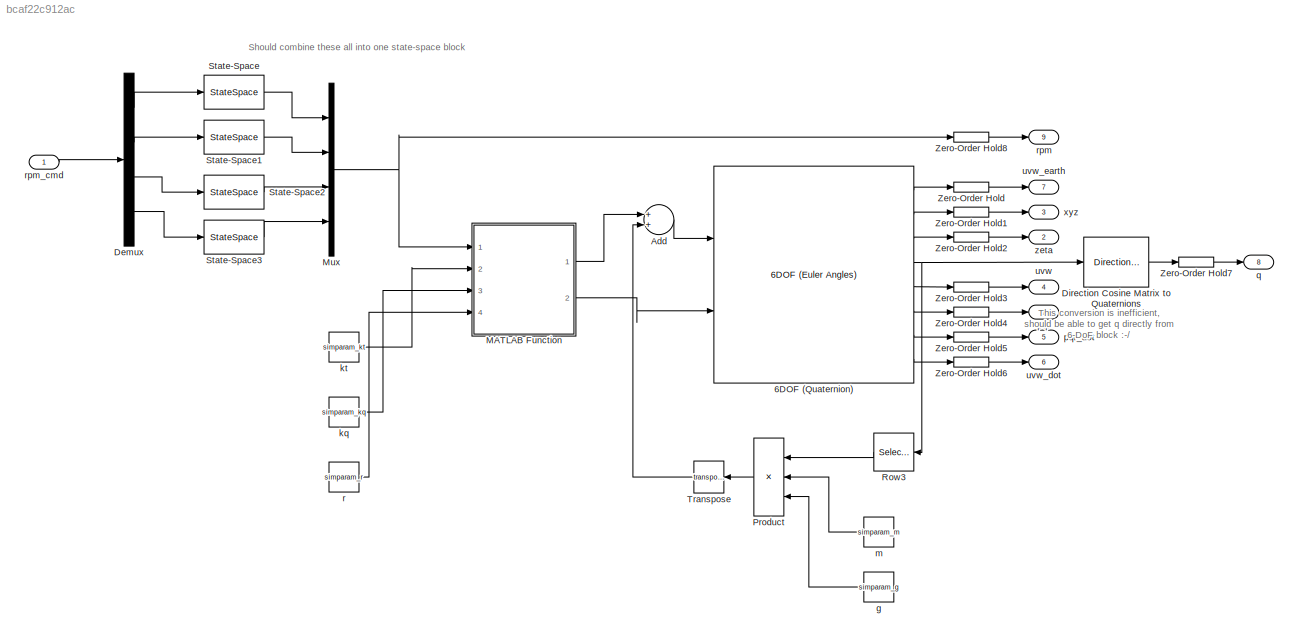
MODEL slx_bcaf22c912ac
KIND model
CONFIG AbsTol = auto
CONFIG EnableMultiTasking = off
CONFIG FixedStep = simparam_delta_t
CONFIG MaxStep = auto
CONFIG MinStep = auto
CONFIG RelTol = 1e-3
CONFIG SampleTimeConstraint = Unconstrained
CONFIG Solver = ode4
CONFIG SolverName = ode4
CONFIG StartTime = 0.0
CONFIG StopTime = inf
WORKSPACE source: MAT-file member
WORKSPACE MCOS: class17 (value not decoded)
WORKSPACE MCOS: class17 (value not decoded)
WORKSPACE MCOS: class17 (value not decoded)
BLOCK [Reference] 6DOF (Quaternion)  REF=shared6dof/6DOF (Euler Angles)
  Ports = [2, 8]
  SourceBlock = shared6dof/6DOF (Euler Angles)
  SourceProductBaseCode = AE
  SourceProductName = Aerospace Blockset
  SourceType = 6DOF EoM (Body Axis)
BLOCK [Sum] Add
  InputSameDT = off
  OutDataTypeStr = Inherit: Inherit via internal rule
  Ports = [2, 1]
  SaturateOnIntegerOverflow = off
BLOCK [Demux] Demux
  DisplayOption = bar
  Ports = [1, 4]
BLOCK [Reference] Direction Cosine Matrix to Quaternions  REF=sharedtransform/Direction Cosine Matrix 
to Quaternions
  Ports = [1, 1]
  SourceBlock = sharedtransform/Direction Cosine Matrix \nto Quaternions
  SourceProductBaseCode = AE
  SourceProductName = Aerospace Blockset
  SourceType = DCM2Quaternion
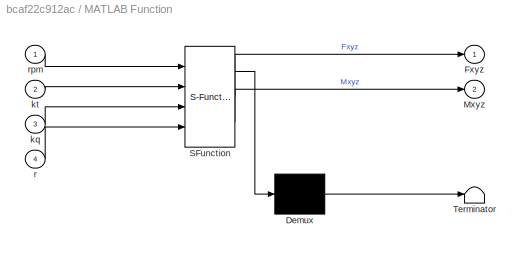
BLOCK [SubSystem] MATLAB Function
  ErrorFcn = Stateflow.Translate.translate
  PermitHierarchicalResolution = ExplicitOnly
  Ports = [4, 2]
  RequestExecContextInheritance = off
  SFBlockType = MATLAB Function
  TreatAsAtomicUnit = on
BLOCK [Demux] MATLAB Function/ Demux 
  Outputs = 1
  Ports = [1, 1]
BLOCK [S-Function] MATLAB Function/ SFunction 
  EnableBusSupport = on
  FunctionName = sf_sfun
  PortCounts = [4 3]
  Ports = [4, 3]
  SFcnIsStateOwnerBlock = off
  SFunctionDeploymentMode = off
  Tag = Stateflow S-Function quadrotor 2
BLOCK [Terminator] MATLAB Function/ Terminator 
BLOCK [Outport] MATLAB Function/Fxyz
  IconDisplay = Port number
BLOCK [Outport] MATLAB Function/Mxyz
  IconDisplay = Port number
  Port = 2
BLOCK [Inport] MATLAB Function/kq
  IconDisplay = Port number
  Port = 3
BLOCK [Inport] MATLAB Function/kt
  IconDisplay = Port number
  Port = 2
BLOCK [Inport] MATLAB Function/r
  IconDisplay = Port number
  Port = 4
BLOCK [Inport] MATLAB Function/rpm
  IconDisplay = Port number
BLOCK [Mux] Mux
  DisplayOption = bar
  Ports = [4, 1]
BLOCK [Product] Product
  InputSameDT = off
  Inputs = 3
  OutDataTypeStr = Inherit: Inherit via internal rule
  Ports = [3, 1]
  RndMeth = Floor
  SaturateOnIntegerOverflow = off
BLOCK [Selector] Row3
  IndexOptions = Index vector (dialog),Select all
  Indices = 3,1
  InputPortWidth = 3
  NumberOfDimensions = 2
  OutputSizes = 1,1
  Ports = [1, 1]
BLOCK [StateSpace] State-Space
  A = -1/simparam_tau
  C = 1/simparam_tau
  D = 0
  InitialCondition = simparam_init_rpm(1)
  Ports = [1, 1]
BLOCK [StateSpace] State-Space1
  A = -1/simparam_tau
  C = 1/simparam_tau
  D = 0
  InitialCondition = simparam_init_rpm(2)
  Ports = [1, 1]
BLOCK [StateSpace] State-Space2
  A = -1/simparam_tau
  C = 1/simparam_tau
  D = 0
  InitialCondition = simparam_init_rpm(3)
  Ports = [1, 1]
BLOCK [StateSpace] State-Space3
  A = -1/simparam_tau
  C = 1/simparam_tau
  D = 0
  InitialCondition = simparam_init_rpm(4)
  Ports = [1, 1]
BLOCK [Math] Transpose
  Operator = transpose
  Ports = [1, 1]
BLOCK [ZeroOrderHold] Zero-Order Hold
  SampleTime = -1
BLOCK [ZeroOrderHold] Zero-Order Hold1
  SampleTime = -1
BLOCK [ZeroOrderHold] Zero-Order Hold2
  SampleTime = -1
BLOCK [ZeroOrderHold] Zero-Order Hold3
  SampleTime = -1
BLOCK [ZeroOrderHold] Zero-Order Hold4
  SampleTime = -1
BLOCK [ZeroOrderHold] Zero-Order Hold5
  SampleTime = -1
BLOCK [ZeroOrderHold] Zero-Order Hold6
  SampleTime = -1
BLOCK [ZeroOrderHold] Zero-Order Hold7
  SampleTime = -1
BLOCK [ZeroOrderHold] Zero-Order Hold8
  SampleTime = -1
BLOCK [Constant] g
  Value = simparam_g
BLOCK [Constant] kq
  Value = simparam_kq
BLOCK [Constant] kt
  Value = simparam_kt
BLOCK [Constant] m
  Value = simparam_m
BLOCK [Outport] pqr
  IconDisplay = Port number
BLOCK [Outport] pqr_dot
  IconDisplay = Port number
  Port = 5
BLOCK [Outport] q
  IconDisplay = Port number
  Port = 8
BLOCK [Constant] r
  Value = simparam_r
BLOCK [Outport] rpm
  IconDisplay = Port number
  Port = 9
BLOCK [Inport] rpm_cmd
  IconDisplay = Port number
  PortDimensions = [4 1]
BLOCK [Outport] uvw
  IconDisplay = Port number
  Port = 4
BLOCK [Outport] uvw_dot
  IconDisplay = Port number
  Port = 6
BLOCK [Outport] uvw_earth
  IconDisplay = Port number
  Port = 7
BLOCK [Outport] xyz
  IconDisplay = Port number
  Port = 3
BLOCK [Outport] zeta
  IconDisplay = Port number
  Port = 2
ANNOTATION (root): Should combine these all into one state-space block
ANNOTATION (root): This conversion is inefficient, should be able to get q directly from 6-DoF block :-/
LINE 6DOF (Quaternion):1 -> Zero-Order Hold:1
LINE 6DOF (Quaternion):2 -> Zero-Order Hold1:1
LINE 6DOF (Quaternion):3 -> Zero-Order Hold2:1
NET 6DOF (Quaternion):4 -> Direction Cosine Matrix to Quaternions:1, Row3:1
LINE 6DOF (Quaternion):5 -> Zero-Order Hold3:1
LINE 6DOF (Quaternion):6 -> Zero-Order Hold4:1
LINE 6DOF (Quaternion):7 -> Zero-Order Hold5:1
LINE 6DOF (Quaternion):8 -> Zero-Order Hold6:1
LINE Add:1 -> 6DOF (Quaternion):1
LINE Demux:1 -> State-Space:1
LINE Demux:2 -> State-Space1:1
LINE Demux:3 -> State-Space2:1
LINE Demux:4 -> State-Space3:1
LINE Direction Cosine Matrix to Quaternions:1 -> Zero-Order Hold7:1
LINE MATLAB Function:1 -> Add:1
LINE MATLAB Function:2 -> 6DOF (Quaternion):2
NET Mux:1 -> MATLAB Function:1, Zero-Order Hold8:1
LINE Product:1 -> Transpose:1
LINE Row3:1 -> Product:1
LINE State-Space1:1 -> Mux:2
LINE State-Space2:1 -> Mux:3
LINE State-Space3:1 -> Mux:4
LINE State-Space:1 -> Mux:1
LINE Transpose:1 -> Add:2
LINE Zero-Order Hold1:1 -> xyz:1
LINE Zero-Order Hold2:1 -> zeta:1
LINE Zero-Order Hold3:1 -> uvw:1
LINE Zero-Order Hold4:1 -> pqr:1
LINE Zero-Order Hold5:1 -> pqr_dot:1
LINE Zero-Order Hold6:1 -> uvw_dot:1
LINE Zero-Order Hold7:1 -> q:1
LINE Zero-Order Hold8:1 -> rpm:1
LINE Zero-Order Hold:1 -> uvw_earth:1
LINE g:1 -> Product:3
LINE kq:1 -> MATLAB Function:3
LINE kt:1 -> MATLAB Function:2
LINE m:1 -> Product:2
LINE r:1 -> MATLAB Function:4
LINE rpm_cmd:1 -> Demux:1
note: NET lines group one-source signal fan-out (src -> all destinations, sorted); 1:1 wires keep LINE
CHART MATLAB Function states=1 transitions=1
  STATE_LABEL 'eML_blk_kernel()'
  STATE_LABEL 'SCRIPT:\nfunction [Fxyz, Mxyz] = fcn(rpm, kt, kq, r)\n\n% Quadrotor has X-configuration, motors numbered clockwise from front left\n\nomega_squared = (rpm/60*2*pi).^2;\n\nT = kt*omega_squared;\nQ = kq*omega_squared;\n\nFxyz = [0; 0; -sum(T)];\nMxyz = [(T(1) - T(2) - T(3) + T(4))*r; (T(1) + T(2) - T(3) - T(4))*r; -Q(1) + Q(2) - Q(3) + Q(4)];\n\n\nend\n\n'
